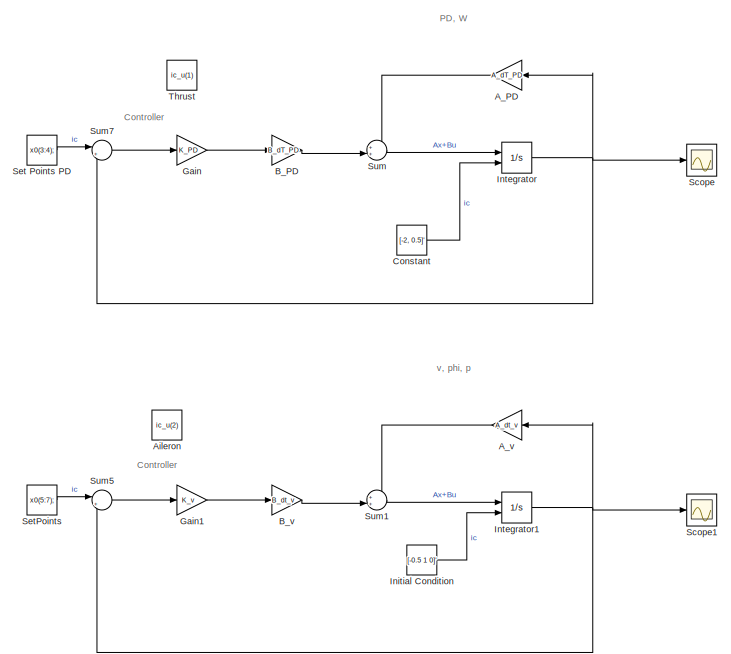
[diagram: root canvas - part 1/3, top left region]
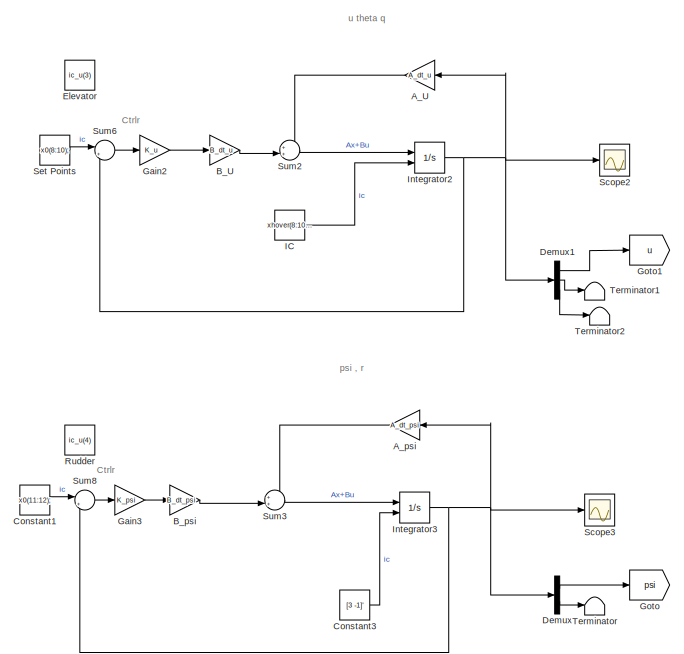
[diagram: root canvas - part 2/3, top right region]
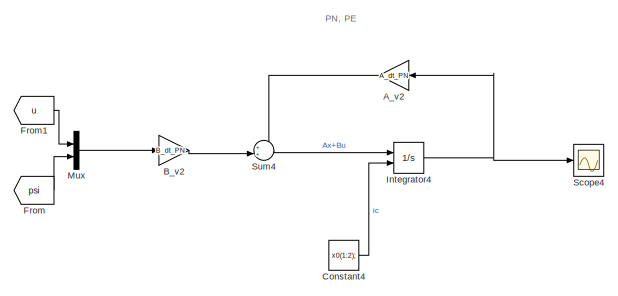
[diagram: root canvas - part 3/3, bottom center region]
MODEL slx_8bec1535d9c3
KIND model
CONFIG AbsTol = auto
CONFIG EnableMultiTasking = off
CONFIG FixedStep = auto
CONFIG MaxStep = auto
CONFIG MinStep = auto
CONFIG RelTol = 1e-3
CONFIG SampleTimeConstraint = Unconstrained
CONFIG SolverName = ode45
CONFIG StartTime = 0.0
CONFIG StopTime = 10.0
BLOCK [Gain] A_PD
  Gain = A_dT_PD
  Multiplication = Matrix(K*u)
BLOCK [Gain] A_U
  Gain = A_dt_u
  Multiplication = Matrix(K*u)
BLOCK [Gain] A_psi
  Gain = A_dt_psi
  Multiplication = Matrix(K*u)
BLOCK [Gain] A_v
  Gain = A_dt_v
  Multiplication = Matrix(K*u)
BLOCK [Gain] A_v2
  Gain = A_dt_PN
  Multiplication = Matrix(K*u)
BLOCK [Constant] Aileron
  Commented = on
  Value = ic_u(2)
BLOCK [Gain] B_PD
  Gain = B_dT_PD
  Multiplication = Matrix(K*u)
BLOCK [Gain] B_U
  Gain = B_dt_u
  Multiplication = Matrix(K*u)
BLOCK [Gain] B_psi
  Gain = B_dt_psi
  Multiplication = Matrix(K*u)
BLOCK [Gain] B_v
  Gain = B_dt_v
  Multiplication = Matrix(K*u)
BLOCK [Gain] B_v2
  Gain = B_dt_PN
  Multiplication = Matrix(K*u)
BLOCK [Constant] Constant
  Value = [-2, 0.5]'
BLOCK [Constant] Constant1
  Value = x0(11:12);
BLOCK [Constant] Constant3
  Value = [3 -1]'
BLOCK [Constant] Constant4
  Value = x0(1:2);
BLOCK [Demux] Demux
  Outputs = 2
  Ports = [1, 2]
BLOCK [Demux] Demux1
  Outputs = 3
  Ports = [1, 3]
BLOCK [Constant] Elevator
  Commented = on
  Value = ic_u(3)
BLOCK [From] From
  GotoTag = psi
BLOCK [From] From1
  GotoTag = u
BLOCK [Gain] Gain
  Gain = K_PD
  Multiplication = Matrix(K*u)
BLOCK [Gain] Gain1
  Gain = K_v
  Multiplication = Matrix(K*u)
BLOCK [Gain] Gain2
  Gain = K_u
  Multiplication = Matrix(K*u)
BLOCK [Gain] Gain3
  Gain = K_psi
  Multiplication = Matrix(K*u)
BLOCK [Goto] Goto
  GotoTag = psi
BLOCK [Goto] Goto1
  GotoTag = u
BLOCK [Constant] IC
  Value = xhover(8:10);
BLOCK [Constant] Initial Condition
  Value = [-0.5 1 0]'
BLOCK [Integrator] Integrator
  InitialConditionSource = external
  Ports = [2, 1]
BLOCK [Integrator] Integrator1
  InitialConditionSource = external
  Ports = [2, 1]
BLOCK [Integrator] Integrator2
  InitialConditionSource = external
  Ports = [2, 1]
BLOCK [Integrator] Integrator3
  InitialConditionSource = external
  Ports = [2, 1]
BLOCK [Integrator] Integrator4
  InitialConditionSource = external
  Ports = [2, 1]
BLOCK [Mux] Mux
  DisplayOption = bar
  Inputs = 2
  Ports = [2, 1]
BLOCK [Constant] Rudder
  Commented = on
  Value = ic_u(4)
BLOCK [Scope] Scope
  Floating = off
  NumInputPorts = 1
  Ports = [1]
  ScopeSpecificationString = Simulink.scopes.TimeScopeBlockCfg('CurrentConfiguration', extmgr.ConfigurationSet(extmgr.Configuration('Core','General UI',true),extmgr.Configuration('Core','Source UI',true),extmgr.Configuration('Sources','WiredSimulink',true),extmgr.Configuration('Visuals','Time Domain',true,'SerializedDisplays',{struct('MinYLimReal','-5','MaxYLimReal','5','YLabelReal','','MinYLimMag','                          ...<+1824ch>
BLOCK [Scope] Scope1
  Floating = off
  NumInputPorts = 1
  Ports = [1]
  ScopeSpecificationString = Simulink.scopes.TimeScopeBlockCfg('CurrentConfiguration', extmgr.ConfigurationSet(extmgr.Configuration('Core','General UI',true),extmgr.Configuration('Core','Source UI',true),extmgr.Configuration('Sources','WiredSimulink',true,'DataLoggingVariableName','ScopeData1'),extmgr.Configuration('Visuals','Time Domain',true,'SerializedDisplays',{struct('MinYLimReal','-8.32111','MaxYLimReal','2.03568','YLab...<+1431ch>
BLOCK [Scope] Scope2
  Floating = off
  NumInputPorts = 1
  Ports = [1]
  ScopeSpecificationString = Simulink.scopes.TimeScopeBlockCfg('CurrentConfiguration', extmgr.ConfigurationSet(extmgr.Configuration('Core','General UI',true),extmgr.Configuration('Core','Source UI',true),extmgr.Configuration('Sources','WiredSimulink',true,'DataLoggingVariableName','ScopeData2'),extmgr.Configuration('Visuals','Time Domain',true,'SerializedDisplays',{struct('MinYLimReal','-0.35896','MaxYLimReal','1.11019','YLab...<+1431ch>
BLOCK [Scope] Scope3
  Floating = off
  NumInputPorts = 1
  Ports = [1]
  ScopeSpecificationString = Simulink.scopes.TimeScopeBlockCfg('CurrentConfiguration', extmgr.ConfigurationSet(extmgr.Configuration('Core','General UI',true),extmgr.Configuration('Core','Source UI',true),extmgr.Configuration('Sources','WiredSimulink',true,'DataLoggingVariableName','ScopeData3'),extmgr.Configuration('Visuals','Time Domain',true,'SerializedDisplays',{struct('MinYLimReal','-24.06359','MaxYLimReal','6.00707','YLa...<+1390ch>
BLOCK [Scope] Scope4
  Floating = off
  NumInputPorts = 1
  Ports = [1]
  ScopeSpecificationString = Simulink.scopes.TimeScopeBlockCfg('CurrentConfiguration', extmgr.ConfigurationSet(extmgr.Configuration('Core','General UI',true),extmgr.Configuration('Core','Source UI',true),extmgr.Configuration('Sources','WiredSimulink',true,'DataLoggingVariableName','ScopeData4'),extmgr.Configuration('Visuals','Time Domain',true,'SerializedDisplays',{struct('MinYLimReal','-0.94716','MaxYLimReal','8.52432','YLab...<+1416ch>
BLOCK [Constant] Set Points
  Value = x0(8:10);
BLOCK [Constant] Set Points PD
  Value = x0(3:4);
BLOCK [Constant] SetPoints
  Value = x0(5:7);
BLOCK [Sum] Sum
  Inputs = ++|
  Ports = [2, 1]
BLOCK [Sum] Sum1
  Inputs = ++|
  Ports = [2, 1]
BLOCK [Sum] Sum2
  Inputs = ++|
  Ports = [2, 1]
BLOCK [Sum] Sum3
  Inputs = ++|
  Ports = [2, 1]
BLOCK [Sum] Sum4
  Inputs = ++|
  Ports = [2, 1]
BLOCK [Sum] Sum5
  Inputs = |+-
  Ports = [2, 1]
BLOCK [Sum] Sum6
  Inputs = |+-
  Ports = [2, 1]
BLOCK [Sum] Sum7
  Inputs = |+-
  Ports = [2, 1]
BLOCK [Sum] Sum8
  Inputs = |+-
  Ports = [2, 1]
BLOCK [Terminator] Terminator
BLOCK [Terminator] Terminator1
BLOCK [Terminator] Terminator2
BLOCK [Constant] Thrust
  Commented = on
  Value = ic_u(1)
ANNOTATION (root): Controller
ANNOTATION (root): Ctrlr
ANNOTATION (root): PD, W
ANNOTATION (root): PN, PE
ANNOTATION (root): psi , r
ANNOTATION (root): u theta q
ANNOTATION (root): v, phi, p
LINE A_PD:1 -> Sum:1
LINE A_U:1 -> Sum2:1
LINE A_psi:1 -> Sum3:1
LINE A_v2:1 -> Sum4:1
LINE A_v:1 -> Sum1:1
LINE B_PD:1 -> Sum:2
LINE B_U:1 -> Sum2:2
LINE B_psi:1 -> Sum3:2
LINE B_v2:1 -> Sum4:2
LINE B_v:1 -> Sum1:2
LINE Constant1:1 -> Sum8:1
LINE Constant3:1 -> Integrator3:2
LINE Constant4:1 -> Integrator4:2
LINE Constant:1 -> Integrator:2
LINE Demux1:1 -> Goto1:1
LINE Demux1:2 -> Terminator1:1
LINE Demux1:3 -> Terminator2:1
LINE Demux:1 -> Goto:1
LINE Demux:2 -> Terminator:1
LINE From1:1 -> Mux:1
LINE From:1 -> Mux:2
LINE Gain1:1 -> B_v:1
LINE Gain2:1 -> B_U:1
LINE Gain3:1 -> B_psi:1
LINE Gain:1 -> B_PD:1
LINE IC:1 -> Integrator2:2
LINE Initial Condition:1 -> Integrator1:2
NET Integrator1:1 -> A_v:1, Scope1:1, Sum5:2
NET Integrator2:1 -> A_U:1, Demux1:1, Scope2:1, Sum6:2
NET Integrator3:1 -> A_psi:1, Demux:1, Scope3:1, Sum8:2
NET Integrator4:1 -> A_v2:1, Scope4:1
NET Integrator:1 -> A_PD:1, Scope:1, Sum7:2
LINE Mux:1 -> B_v2:1
LINE Set Points PD:1 -> Sum7:1
LINE Set Points:1 -> Sum6:1
LINE SetPoints:1 -> Sum5:1
LINE Sum1:1 -> Integrator1:1
LINE Sum2:1 -> Integrator2:1
LINE Sum3:1 -> Integrator3:1
LINE Sum4:1 -> Integrator4:1
LINE Sum5:1 -> Gain1:1
LINE Sum6:1 -> Gain2:1
LINE Sum7:1 -> Gain:1
LINE Sum8:1 -> Gain3:1
LINE Sum:1 -> Integrator:1
note: NET lines group one-source signal fan-out (src -> all destinations, sorted); 1:1 wires keep LINE
